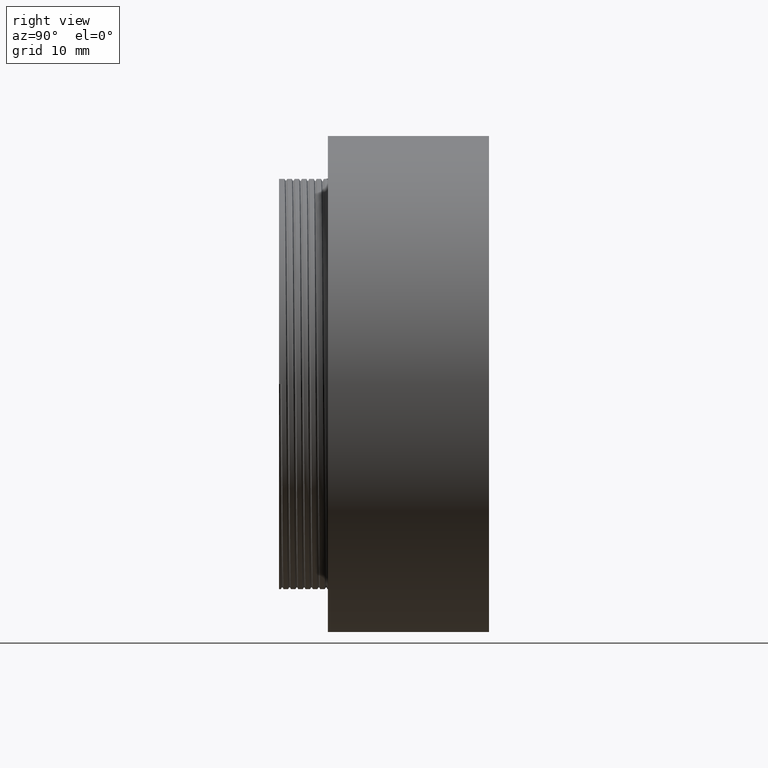
[diagram: clean part render]
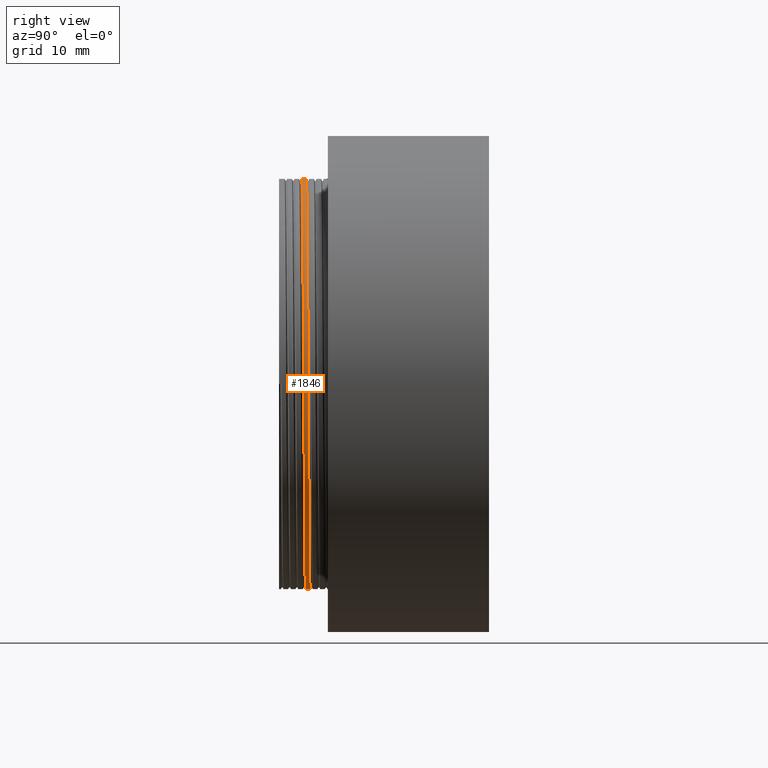
[diagram: same view with one face highlighted and labeled with its STEP entity id]
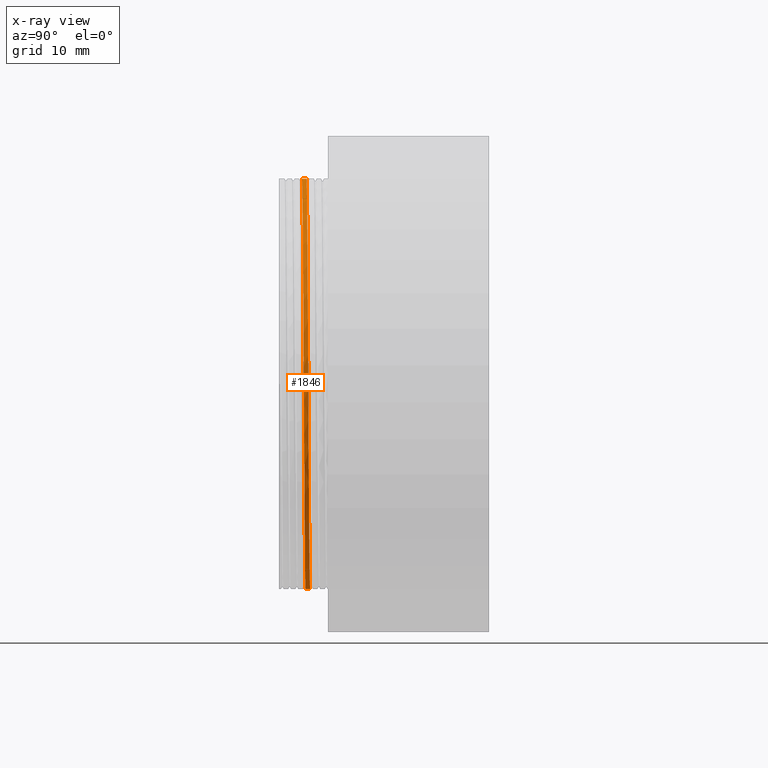
[diagram: x-ray of the same camera — body ghosted, the highlighted face saturated]
A machine part, right view. The second image highlights one B-rep face of the part: STEP entity #1846.
The next image is the same camera in x-ray: the body ghosted, the highlighted face saturated — about 0% of this face is hidden behind the body in this view.
In plain terms, the highlighted cylindrical surface (partial cylindrical patch) has radius 21 mm, axis along (-0, -1, -0).
Its self-contained STEP definition (entity closure, byte-faithful):
#83 = EDGE_CURVE ( 'NONE', #5300, #6628, #5465, .T. ) ;
#464 = CARTESIAN_POINT ( 'NONE',  ( 17.12207732205168043, 2.603745100102771826, -12.23615838526086996 ) ) ;
#528 = CARTESIAN_POINT ( 'NONE',  ( 21.03493971759787939, 2.535955058714054466, -1.070990643240710805 ) ) ;
#566 = CARTESIAN_POINT ( 'NONE',  ( 6.746479376807632100, 2.677420420187865968, -19.90665264721550543 ) ) ;
#690 = DIRECTION ( 'NONE',  ( 0.000000000000000000, 0.000000000000000000, -1.000000000000000000 ) ) ;
#811 = VERTEX_POINT ( 'NONE', #5364 ) ;
#1031 = CARTESIAN_POINT ( 'NONE',  ( 1.285879139104720831E-15, 3.187500000000000444, -21.00000000000000000 ) ) ;
#1056 = CARTESIAN_POINT ( 'NONE',  ( 5.954364618077498505, 2.682042835836733641, -20.15277281558432065 ) ) ;
#1090 = CARTESIAN_POINT ( 'NONE',  ( 17.98935744628824196, 2.464384510374807657, 11.01407429034676078 ) ) ;
#1103 = VECTOR ( 'NONE', #4204, 1000.000000000000000 ) ;
#1163 = CARTESIAN_POINT ( 'NONE',  ( 8.698484809834958753, 3.140625000000000444, -21.00000000000004263 ) ) ;
#1295 = LINE ( 'NONE', #2894, #6131 ) ;
#1334 = ORIENTED_EDGE ( 'NONE', *, *, #4471, .T. ) ;
#1504 = CARTESIAN_POINT ( 'NONE',  ( 1.285879139104720831E-15, 3.187500000000000444, -21.00000000000000000 ) ) ;
#1587 = CARTESIAN_POINT ( 'NONE',  ( 2.316206379988220958E-06, 2.715312486651224599, -20.99999999999987210 ) ) ;
#1693 = CARTESIAN_POINT ( 'NONE',  ( -3.857637417314162689E-15, 2.812500000000000000, 21.00000000000000000 ) ) ;
#1846 = ADVANCED_FACE ( 'NONE', ( #6110 ), #2352, .T. ) ;
#2023 = LINE ( 'NONE', #5783, #1103 ) ;
#2090 = CARTESIAN_POINT ( 'NONE',  ( 18.57088933402388875, 2.588198076855491969, -9.900059252092574980 ) ) ;
#2156 = CARTESIAN_POINT ( 'NONE',  ( 19.21298522789033214, 2.580074443456877198, -8.608069421991237036 ) ) ;
#2230 = AXIS2_PLACEMENT_3D ( 'NONE', #5541, #5578, #690 ) ;
#2352 = CYLINDRICAL_SURFACE ( 'NONE', #2230, 21.00000000000000000 ) ;
#2368 = EDGE_LOOP ( 'NONE', ( #4228, #1334, #5838, #3746 ) ) ;
#2468 = CARTESIAN_POINT ( 'NONE',  ( 2.316206379988220958E-06, 2.715312486651224599, -20.99999999999987210 ) ) ;
#2592 = CARTESIAN_POINT ( 'NONE',  ( 13.73222040793190679, 2.632038172397535458, -15.92816973453166085 ) ) ;
#2628 = CARTESIAN_POINT ( 'NONE',  ( 4.749716272016031131E-06, 2.341248240308689166, 20.99999999999885958 ) ) ;
#2661 = CARTESIAN_POINT ( 'NONE',  ( 3.773281042774470961, 2.694509595683435510, -20.66832019171556922 ) ) ;
#2693 = CARTESIAN_POINT ( 'NONE',  ( 20.62288926082818818, 2.554303056161132179, -4.279269612504408293 ) ) ;
#2892 = EDGE_CURVE ( 'NONE', #811, #6698, #2984, .T. ) ;
#2894 = CARTESIAN_POINT ( 'NONE',  ( 0.000000000000000000, 0.000000000000000000, -21.00000000000000000 ) ) ;
#2984 = B_SPLINE_CURVE_WITH_KNOTS ( 'NONE', 3,
 ( #2628, #5987, #3270, #3797, #7021, #4915, #3130, #1090, #4200, #7057, #3167, #5354, #528, #2693, #4880, #2156, #2090, #464, #6523, #4300, #2592, #6387, #5453, #5884, #4812, #566, #1056, #6954, #2661, #6989, #6489, #1587 ),
 .UNSPECIFIED., .F., .F.,
 ( 4, 2, 2, 2, 2, 2, 2, 2, 2, 2, 2, 2, 2, 2, 2, 4 ),
 ( 0.3866446812012823142, 0.3929470587732487585, 0.3992494363452152029, 0.4055518139171816472, 0.4118541914891480915, 0.4181565690611145358, 0.4244589466330809802, 0.4307613242050474245, 0.4370637017770138688, 0.4433660793489803131, 0.4496684569209467575, 0.4559708344929132018, 0.4622732120648797016, 0.4685755896368460904, 0.4748779672088125903, 0.4874827223527454234 ),
 .UNSPECIFIED. ) ;
#3130 = CARTESIAN_POINT ( 'NONE',  ( 15.61152579455568201, 2.441835051628030495, 14.18474801219695713 ) ) ;
#3167 = CARTESIAN_POINT ( 'NONE',  ( 20.67415458650667759, 2.506682453668561461, 4.074626854637134699 ) ) ;
#3270 = CARTESIAN_POINT ( 'NONE',  ( 4.627489915993713510, 2.368584726988104627, 20.60423945248217237 ) ) ;
#3740 = CARTESIAN_POINT ( 'NONE',  ( 8.698484809835042242, 2.859375000000000000, 20.99999999999995381 ) ) ;
#3746 = ORIENTED_EDGE ( 'NONE', *, *, #6565, .F. ) ;
#3797 = CARTESIAN_POINT ( 'NONE',  ( 8.841489521914589034, 2.393935159934679202, 19.17749747416802109 ) ) ;
#3872 = CARTESIAN_POINT ( 'NONE',  ( 21.00000000000000000, 3.000000000000000000, 0.000000000000000000 ) ) ;
#4200 = CARTESIAN_POINT ( 'NONE',  ( 18.91504193907708853, 2.475309117973220729, 9.310288661215954775 ) ) ;
#4204 = DIRECTION ( 'NONE',  ( -0.000000000000000000, -1.000000000000000000, -0.000000000000000000 ) ) ;
#4228 = ORIENTED_EDGE ( 'NONE', *, *, #83, .F. ) ;
#4300 = CARTESIAN_POINT ( 'NONE',  ( 14.62058434712085209, 2.625315026098818283, -15.12641904620094024 ) ) ;
#4340 = CARTESIAN_POINT ( 'NONE',  ( 14.84924240491749536, 2.906250000000000000, 14.84924240491750247 ) ) ;
#4471 = EDGE_CURVE ( 'NONE', #5300, #811, #2023, .T. ) ;
#4530 = CARTESIAN_POINT ( 'NONE',  ( -3.857637417314162689E-15, 2.812500000000000000, 21.00000000000000000 ) ) ;
#4812 = CARTESIAN_POINT ( 'NONE',  ( 8.404223540769345746, 2.667475345340183157, -19.26548287158567874 ) ) ;
#4880 = CARTESIAN_POINT ( 'NONE',  ( 20.23915025606138229, 2.563126933109697969, -5.797797638200516523 ) ) ;
#4915 = CARTESIAN_POINT ( 'NONE',  ( 14.15872789343217342, 2.430210200479667737, 15.65098265877344907 ) ) ;
#4979 = DIRECTION ( 'NONE',  ( -0.000000000000000000, -1.000000000000000000, -0.000000000000000000 ) ) ;
#5300 = VERTEX_POINT ( 'NONE', #4530 ) ;
#5354 = CARTESIAN_POINT ( 'NONE',  ( 21.06276818729012845, 2.526430938215540323, 0.6189088461029337296 ) ) ;
#5364 = CARTESIAN_POINT ( 'NONE',  ( 4.749716272016031131E-06, 2.341248240308689166, 20.99999999999885958 ) ) ;
#5453 = CARTESIAN_POINT ( 'NONE',  ( 11.03835204685105431, 2.650807124193783615, -17.89343940599076177 ) ) ;
#5465 =( BOUNDED_CURVE ( )  B_SPLINE_CURVE ( 2, ( #1693, #3740, #4340, #6596, #3872, #5930, #6057, #1163, #1031 ),
 .UNSPECIFIED., .F., .F. ) 
 B_SPLINE_CURVE_WITH_KNOTS ( ( 3, 2, 2, 2, 3 ),
 ( 0.5357142857142858094, 0.5535714285714287142, 0.5714285714285715079, 0.5892857142857144126, 0.6071428571428572063 ),
 .UNSPECIFIED. ) 
 CURVE ( )  GEOMETRIC_REPRESENTATION_ITEM ( )  RATIONAL_B_SPLINE_CURVE ( ( 0.9999999999999995559, 0.9238795325112871826, 1.000000000000000000, 0.9238795325112867385, 1.000000000000000000, 0.9238795325112867385, 1.000000000000000000, 0.9238795325112862944, 1.000000000000000444 ) ) 
 REPRESENTATION_ITEM ( '' )  );
#5541 = CARTESIAN_POINT ( 'NONE',  ( 0.000000000000000000, 0.000000000000000000, 0.000000000000000000 ) ) ;
#5578 = DIRECTION ( 'NONE',  ( -0.000000000000000000, -1.000000000000000000, -0.000000000000000000 ) ) ;
#5783 = CARTESIAN_POINT ( 'NONE',  ( 2.571758278209441661E-15, 0.000000000000000000, 21.00000000000000000 ) ) ;
#5838 = ORIENTED_EDGE ( 'NONE', *, *, #2892, .T. ) ;
#5884 = CARTESIAN_POINT ( 'NONE',  ( 9.269939714103967887, 2.662152686141366242, -18.87031020897542533 ) ) ;
#5930 = CARTESIAN_POINT ( 'NONE',  ( 21.00000000000000355, 3.046875000000000000, -8.698484809834997833 ) ) ;
#5987 = CARTESIAN_POINT ( 'NONE',  ( 2.345922037903711566, 2.355559388739842497, 21.00000003268511861 ) ) ;
#6057 = CARTESIAN_POINT ( 'NONE',  ( 14.84924240491749892, 3.093750000000000000, -14.84924240491749892 ) ) ;
#6110 = FACE_OUTER_BOUND ( 'NONE', #2368, .T. ) ;
#6131 = VECTOR ( 'NONE', #4979, 1000.000000000000000 ) ;
#6387 = CARTESIAN_POINT ( 'NONE',  ( 11.94110844504101188, 2.644784221445015682, -17.31156831508462091 ) ) ;
#6489 = CARTESIAN_POINT ( 'NONE',  ( 0.8059446303711911286, 2.710969360203248524, -20.99999991110802711 ) ) ;
#6523 = CARTESIAN_POINT ( 'NONE',  ( 16.31554982974684975, 2.611168489951437799, -13.28054492728342595 ) ) ;
#6565 = EDGE_CURVE ( 'NONE', #6628, #6698, #1295, .T. ) ;
#6596 = CARTESIAN_POINT ( 'NONE',  ( 20.99999999999999645, 2.953125000000000000, 8.698484809835010267 ) ) ;
#6628 = VERTEX_POINT ( 'NONE', #1504 ) ;
#6698 = VERTEX_POINT ( 'NONE', #2468 ) ;
#6954 = CARTESIAN_POINT ( 'NONE',  ( 4.467812671932654744, 2.690587423584517079, -20.53356666753454007 ) ) ;
#6989 = CARTESIAN_POINT ( 'NONE',  ( 1.857468032299673055, 2.705225746655262498, -20.95753444489928441 ) ) ;
#7021 = CARTESIAN_POINT ( 'NONE',  ( 10.77392787109515560, 2.406260254632992091, 18.14787348352198748 ) ) ;
#7057 = CARTESIAN_POINT ( 'NONE',  ( 20.25709430970612956, 2.496458089620096743, 5.840412368992661918 ) ) ;